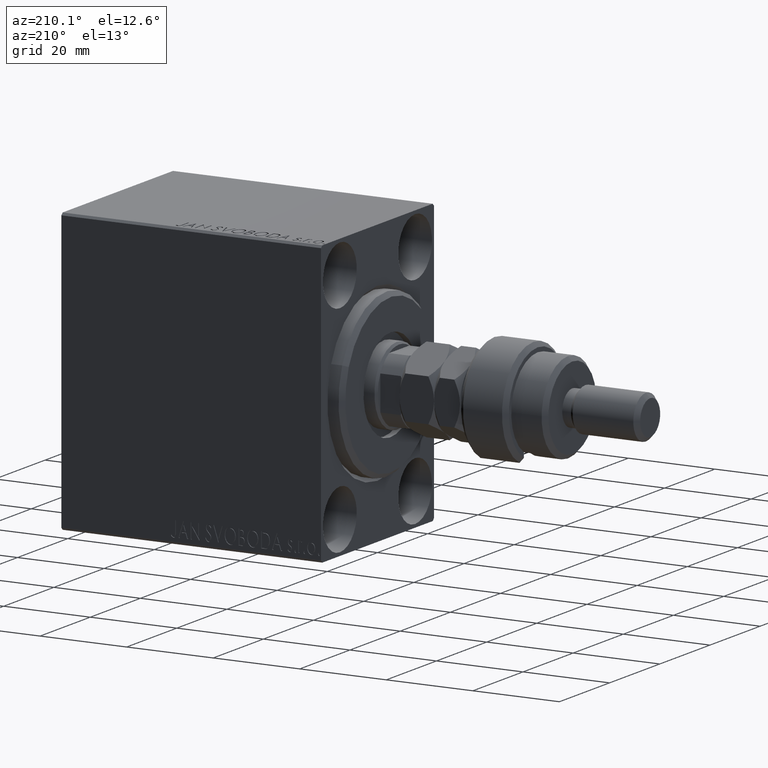
[diagram: clean part render]
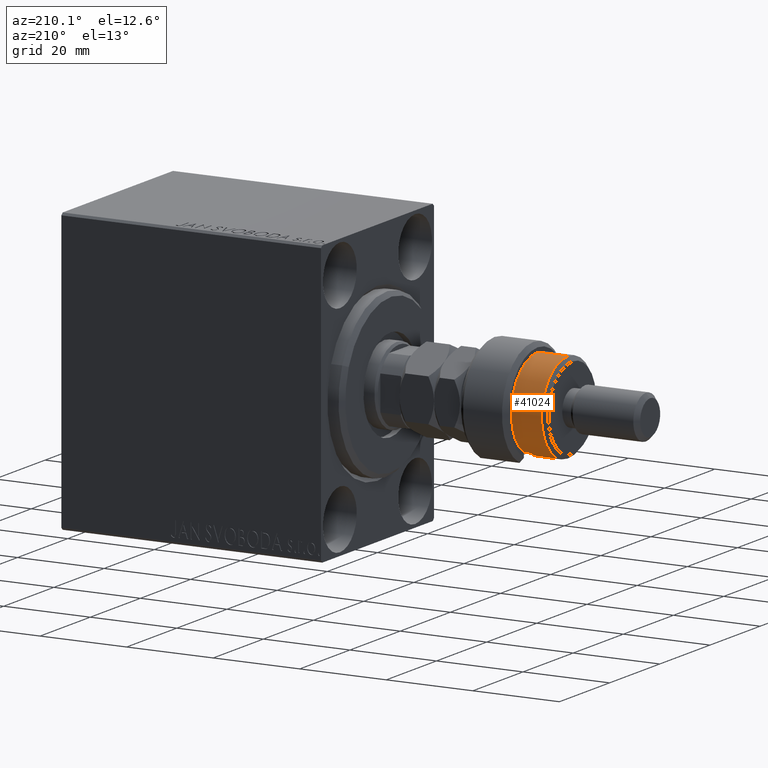
[diagram: same view with one face highlighted and labeled with its STEP entity id]
A machine part, auxiliary view. The second image highlights one B-rep face of the part: STEP entity #41024.
In plain terms, the highlighted cylindrical surface (partial cylindrical patch) has radius 10.5 mm, axis along (1, -0, -0).
Its self-contained STEP definition (entity closure, byte-faithful):
#3692 = DIRECTION ( 'NONE',  ( 0.000000000000000000, 0.000000000000000000, 1.000000000000000000 ) ) ;
#4055 = CARTESIAN_POINT ( 'NONE',  ( -10.50000000000000000, 0.000000000000000000, 12.50000000000000000 ) ) ;
#4263 = ORIENTED_EDGE ( 'NONE', *, *, #44454, .T. ) ;
#4824 = AXIS2_PLACEMENT_3D ( 'NONE', #43424, #28816, #25501 ) ;
#5429 = CARTESIAN_POINT ( 'NONE',  ( 0.000000000000000000, 0.000000000000000000, 19.00000000000000000 ) ) ;
#7663 = VERTEX_POINT ( 'NONE', #17932 ) ;
#7673 = CARTESIAN_POINT ( 'NONE',  ( 0.000000000000000000, 0.000000000000000000, 17.99999999999999645 ) ) ;
#7691 = VERTEX_POINT ( 'NONE', #21155 ) ;
#7919 = ORIENTED_EDGE ( 'NONE', *, *, #26521, .T. ) ;
#8452 = VERTEX_POINT ( 'NONE', #4055 ) ;
#8454 = CIRCLE ( 'NONE', #41550, 10.50000000000000000 ) ;
#8559 = EDGE_LOOP ( 'NONE', ( #32257, #4263, #7919, #35962, #34801, #20761 ) ) ;
#8574 = VECTOR ( 'NONE', #32311, 1000.000000000000000 ) ;
#8666 = VERTEX_POINT ( 'NONE', #45980 ) ;
#9496 = EDGE_CURVE ( 'NONE', #8452, #7691, #37517, .T. ) ;
#10152 = DIRECTION ( 'NONE',  ( -1.000000000000000000, 0.000000000000000000, 0.000000000000000000 ) ) ;
#12605 = CARTESIAN_POINT ( 'NONE',  ( 0.000000000000000000, 0.000000000000000000, 12.50000000000000000 ) ) ;
#13732 = AXIS2_PLACEMENT_3D ( 'NONE', #5429, #19824, #10152 ) ;
#14544 = LINE ( 'NONE', #42181, #27277 ) ;
#17624 = VERTEX_POINT ( 'NONE', #20685 ) ;
#17932 = CARTESIAN_POINT ( 'NONE',  ( 10.50000000000000000, 1.285879139104720831E-15, 11.00000000000000000 ) ) ;
#18753 = DIRECTION ( 'NONE',  ( 1.000000000000000000, 0.000000000000000000, 0.000000000000000000 ) ) ;
#19824 = DIRECTION ( 'NONE',  ( -0.000000000000000000, -0.000000000000000000, -1.000000000000000000 ) ) ;
#20354 = DIRECTION ( 'NONE',  ( 0.000000000000000000, 0.000000000000000000, -1.000000000000000000 ) ) ;
#20685 = CARTESIAN_POINT ( 'NONE',  ( -8.944271909999159220, 5.500000000000000000, 11.00000000000000000 ) ) ;
#20761 = ORIENTED_EDGE ( 'NONE', *, *, #41078, .F. ) ;
#20919 = LINE ( 'NONE', #35298, #36858 ) ;
#21155 = CARTESIAN_POINT ( 'NONE',  ( -8.944271909999159220, 5.500000000000000000, 12.50000000000000000 ) ) ;
#21576 = DIRECTION ( 'NONE',  ( 0.000000000000000000, 0.000000000000000000, -1.000000000000000000 ) ) ;
#23769 = EDGE_CURVE ( 'NONE', #8666, #29828, #8454, .T. ) ;
#24505 = DIRECTION ( 'NONE',  ( -0.000000000000000000, -0.000000000000000000, -1.000000000000000000 ) ) ;
#25501 = DIRECTION ( 'NONE',  ( 1.000000000000000000, 0.000000000000000000, 0.000000000000000000 ) ) ;
#26521 = EDGE_CURVE ( 'NONE', #7663, #17624, #46226, .T. ) ;
#27277 = VECTOR ( 'NONE', #24505, 1000.000000000000000 ) ;
#28783 = CARTESIAN_POINT ( 'NONE',  ( 10.50000000000000000, 1.285879139104720831E-15, 19.00000000000000000 ) ) ;
#28816 = DIRECTION ( 'NONE',  ( 0.000000000000000000, 0.000000000000000000, 1.000000000000000000 ) ) ;
#29828 = VERTEX_POINT ( 'NONE', #44855 ) ;
#31591 = EDGE_CURVE ( 'NONE', #17624, #7691, #20919, .T. ) ;
#32257 = ORIENTED_EDGE ( 'NONE', *, *, #23769, .T. ) ;
#32311 = DIRECTION ( 'NONE',  ( -0.000000000000000000, -0.000000000000000000, -1.000000000000000000 ) ) ;
#34035 = DIRECTION ( 'NONE',  ( -1.000000000000000000, 0.000000000000000000, 0.000000000000000000 ) ) ;
#34801 = ORIENTED_EDGE ( 'NONE', *, *, #9496, .F. ) ;
#35298 = CARTESIAN_POINT ( 'NONE',  ( -8.944271909999159220, 5.500000000000000000, 19.00000000000000000 ) ) ;
#35962 = ORIENTED_EDGE ( 'NONE', *, *, #31591, .T. ) ;
#36858 = VECTOR ( 'NONE', #3692, 1000.000000000000000 ) ;
#37517 = CIRCLE ( 'NONE', #39033, 10.50000000000000000 ) ;
#37719 = CYLINDRICAL_SURFACE ( 'NONE', #13732, 10.50000000000000000 ) ;
#39033 = AXIS2_PLACEMENT_3D ( 'NONE', #12605, #20354, #34035 ) ;
#41024 = ADVANCED_FACE ( 'NONE', ( #41253 ), #37719, .T. ) ;
#41078 = EDGE_CURVE ( 'NONE', #8666, #8452, #14544, .T. ) ;
#41253 = FACE_OUTER_BOUND ( 'NONE', #8559, .T. ) ;
#41550 = AXIS2_PLACEMENT_3D ( 'NONE', #7673, #21576, #18753 ) ;
#42181 = CARTESIAN_POINT ( 'NONE',  ( -10.50000000000000000, 0.000000000000000000, 19.00000000000000000 ) ) ;
#42924 = LINE ( 'NONE', #28783, #8574 ) ;
#43424 = CARTESIAN_POINT ( 'NONE',  ( 0.000000000000000000, 0.000000000000000000, 11.00000000000000000 ) ) ;
#44454 = EDGE_CURVE ( 'NONE', #29828, #7663, #42924, .T. ) ;
#44855 = CARTESIAN_POINT ( 'NONE',  ( 10.50000000000000000, 1.285879139104720831E-15, 17.99999999999999645 ) ) ;
#45980 = CARTESIAN_POINT ( 'NONE',  ( -10.50000000000000000, 0.000000000000000000, 17.99999999999999645 ) ) ;
#46226 = CIRCLE ( 'NONE', #4824, 10.50000000000000000 ) ;